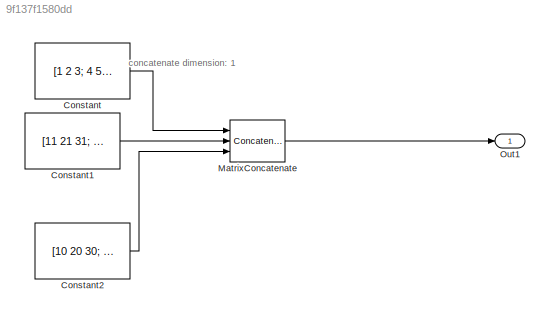
MODEL slx_9f137f1580dd
KIND model
CONFIG AbsTol = auto
CONFIG EnableMultiTasking = on
CONFIG FixedStep = 0.200000
CONFIG MaxStep = auto
CONFIG MinStep = auto
CONFIG RelTol = 1e-3
CONFIG SampleTimeConstraint = Unconstrained
CONFIG Solver = FixedStepDiscrete
CONFIG SolverName = FixedStepDiscrete
CONFIG StartTime = 0.0
CONFIG StopTime = 10.0
WORKSPACE source: MAT-file member
WORKSPACE already_pp = 0
BLOCK [Constant] Constant
  Value = [1 2 3; 4 5 6; 7 8 9]
BLOCK [Constant] Constant1
  Value = [11 21 31; 14 15 16]
BLOCK [Constant] Constant2
  Value = [10 20 30; 40 50 60; 70 80 90]
BLOCK [Concatenate] MatrixConcatenate
  Mode = Multidimensional array
  NumInputs = 3
  Ports = [3, 1]
BLOCK [Outport] Out1
  IconDisplay = Port number
ANNOTATION (root): concatenate dimension: 1
LINE Constant1:1 -> MatrixConcatenate:2
LINE Constant2:1 -> MatrixConcatenate:3
LINE Constant:1 -> MatrixConcatenate:1
LINE MatrixConcatenate:1 -> Out1:1
